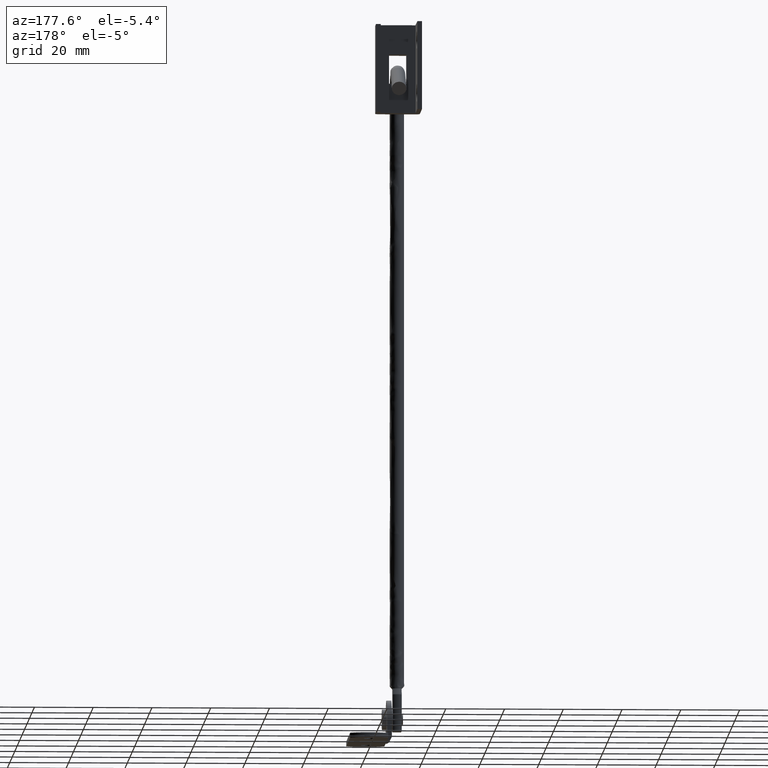
[diagram: clean part render]
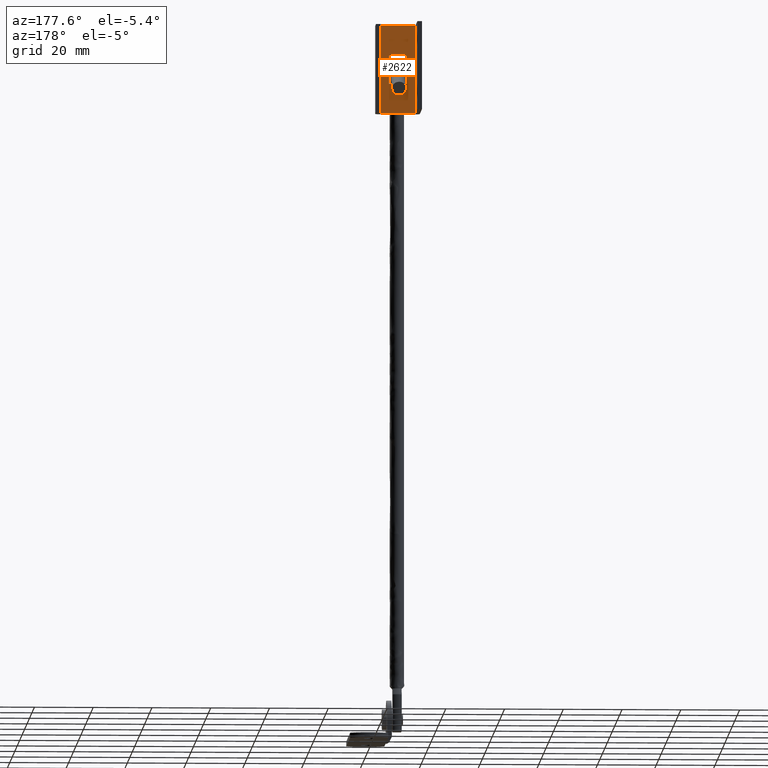
[diagram: same view with one face highlighted and labeled with its STEP entity id]
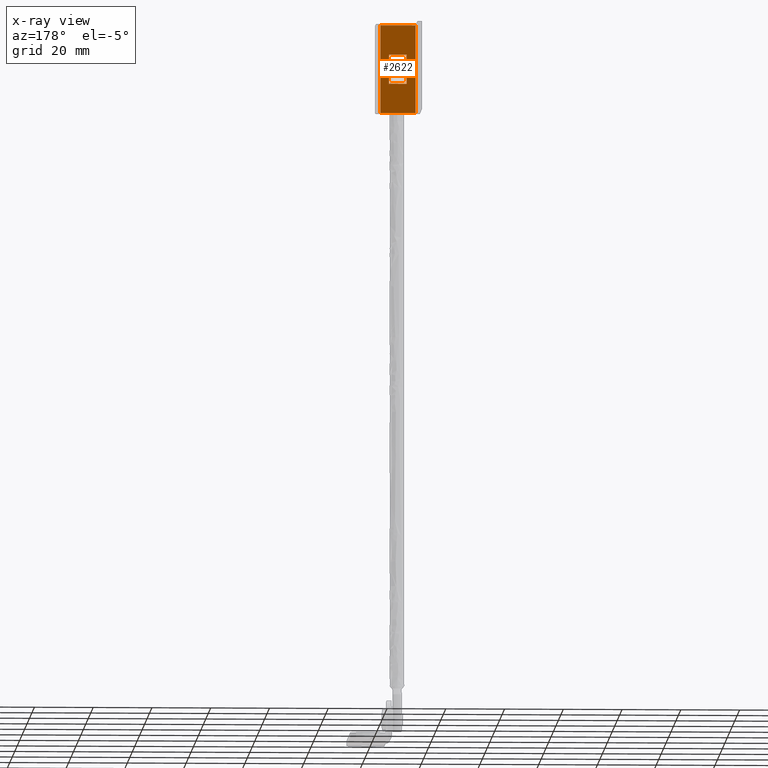
[diagram: x-ray of the same camera — body ghosted, the highlighted face saturated]
A machine part, auxiliary view. The second image highlights one B-rep face of the part: STEP entity #2622.
The next image is the same camera in x-ray: the body ghosted, the highlighted face saturated — about 0% of this face is hidden behind the body in this view.
In plain terms, the highlighted face is a freeform B-spline surface patch.
Its self-contained STEP definition (entity closure, byte-faithful):
#2377=CARTESIAN_POINT('',(-7.099990999999790,7.099975999999740,226.662185999999990));
#2378=VERTEX_POINT('',#2377);
#2384=CARTESIAN_POINT('',(-13.099990999999800,7.099975999999790,226.662185999999990));
#2385=VERTEX_POINT('',#2384);
#2386=CARTESIAN_POINT('',(-7.099990999999790,7.099975999999740,226.662185999999990));
#2387=CARTESIAN_POINT('',(-13.099990999999800,7.099975999999790,226.662185999999990));
#2388=QUASI_UNIFORM_CURVE('',1,(#2386,#2387),.UNSPECIFIED.,.F.,.U.);
#2389=EDGE_CURVE('',#2378,#2385,#2388,.T.);
#2411=CARTESIAN_POINT('',(-7.099990999999790,7.099975999999790,236.662185999999990));
#2412=VERTEX_POINT('',#2411);
#2418=CARTESIAN_POINT('',(-7.099990999999790,7.099975999999790,236.662185999999990));
#2419=CARTESIAN_POINT('',(-7.099990999999790,7.099975999999740,226.662185999999990));
#2420=QUASI_UNIFORM_CURVE('',1,(#2418,#2419),.UNSPECIFIED.,.F.,.U.);
#2421=EDGE_CURVE('',#2412,#2378,#2420,.T.);
#2439=CARTESIAN_POINT('',(-13.099990999999800,7.099975999999790,236.662185999999990));
#2440=VERTEX_POINT('',#2439);
#2446=CARTESIAN_POINT('',(-13.099990999999800,7.099975999999790,236.662185999999990));
#2447=CARTESIAN_POINT('',(-7.099990999999790,7.099975999999790,236.662185999999990));
#2448=QUASI_UNIFORM_CURVE('',1,(#2446,#2447),.UNSPECIFIED.,.F.,.U.);
#2449=EDGE_CURVE('',#2440,#2412,#2448,.T.);
#2466=CARTESIAN_POINT('',(-13.099990999999800,7.099975999999790,226.662185999999990));
#2467=CARTESIAN_POINT('',(-13.099990999999800,7.099975999999790,236.662185999999990));
#2468=QUASI_UNIFORM_CURVE('',1,(#2466,#2467),.UNSPECIFIED.,.F.,.U.);
#2469=EDGE_CURVE('',#2385,#2440,#2468,.T.);
#2482=CARTESIAN_POINT('',(-4.099990999999790,7.099975999999740,246.662185999999990));
#2483=VERTEX_POINT('',#2482);
#2489=CARTESIAN_POINT('',(-16.099990999999999,7.099975999999740,246.662185999999990));
#2490=VERTEX_POINT('',#2489);
#2491=CARTESIAN_POINT('',(-4.099990999999790,7.099975999999740,246.662185999999990));
#2492=CARTESIAN_POINT('',(-16.099990999999999,7.099975999999740,246.662185999999990));
#2493=QUASI_UNIFORM_CURVE('',1,(#2491,#2492),.UNSPECIFIED.,.F.,.U.);
#2494=EDGE_CURVE('',#2483,#2490,#2493,.T.);
#2518=CARTESIAN_POINT('',(-4.099990999999790,7.099975999999740,216.662185999999990));
#2519=VERTEX_POINT('',#2518);
#2532=CARTESIAN_POINT('',(-16.099990999999999,7.099975999999740,216.662185999999990));
#2533=VERTEX_POINT('',#2532);
#2539=CARTESIAN_POINT('',(-4.099990999999790,7.099975999999740,216.662185999999990));
#2540=CARTESIAN_POINT('',(-16.099990999999999,7.099975999999740,216.662185999999990));
#2541=QUASI_UNIFORM_CURVE('',1,(#2539,#2540),.UNSPECIFIED.,.F.,.U.);
#2542=EDGE_CURVE('',#2519,#2533,#2541,.T.);
#2553=CARTESIAN_POINT('',(-16.099990999999999,7.099975999999740,216.662185999999990));
#2554=CARTESIAN_POINT('',(-16.099990999999999,7.099975999999740,246.662185999999990));
#2555=QUASI_UNIFORM_CURVE('',1,(#2553,#2554),.UNSPECIFIED.,.F.,.U.);
#2556=EDGE_CURVE('',#2533,#2490,#2555,.T.);
#2579=CARTESIAN_POINT('',(-4.099990999999790,7.099975999999740,216.662185999999990));
#2580=CARTESIAN_POINT('',(-4.099990999999790,7.099975999999740,246.662185999999990));
#2581=QUASI_UNIFORM_CURVE('',1,(#2579,#2580),.UNSPECIFIED.,.F.,.U.);
#2582=EDGE_CURVE('',#2519,#2483,#2581,.T.);
#2605=CARTESIAN_POINT('',(-16.699390864094280,7.099975999999740,215.163685494908800));
#2606=CARTESIAN_POINT('',(-16.699390864094280,7.099975999999740,248.160686773312190));
#2607=CARTESIAN_POINT('',(-3.500590706752081,7.099975999999740,215.163685494908800));
#2608=CARTESIAN_POINT('',(-3.500590706752081,7.099975999999740,248.160686773312190));
#2609=B_SPLINE_SURFACE_WITH_KNOTS('',1,1,((#2605,#2607),(#2606,#2608)),.UNSPECIFIED.,.F.,.F.,.U.,(2,2),(2,2),(0.0,32.997001278403452),(0.0,13.198800157342200),.UNSPECIFIED.);
#2610=ORIENTED_EDGE('',*,*,#2494,.F.);
#2611=ORIENTED_EDGE('',*,*,#2582,.F.);
#2612=ORIENTED_EDGE('',*,*,#2542,.T.);
#2613=ORIENTED_EDGE('',*,*,#2556,.T.);
#2614=EDGE_LOOP('',(#2610,#2611,#2612,#2613));
#2615=FACE_OUTER_BOUND('',#2614,.T.);
#2616=ORIENTED_EDGE('',*,*,#2449,.F.);
#2617=ORIENTED_EDGE('',*,*,#2469,.F.);
#2618=ORIENTED_EDGE('',*,*,#2389,.F.);
#2619=ORIENTED_EDGE('',*,*,#2421,.F.);
#2620=EDGE_LOOP('',(#2616,#2617,#2618,#2619));
#2621=FACE_BOUND('',#2620,.T.);
#2622=ADVANCED_FACE('',(#2615,#2621),#2609,.T.);